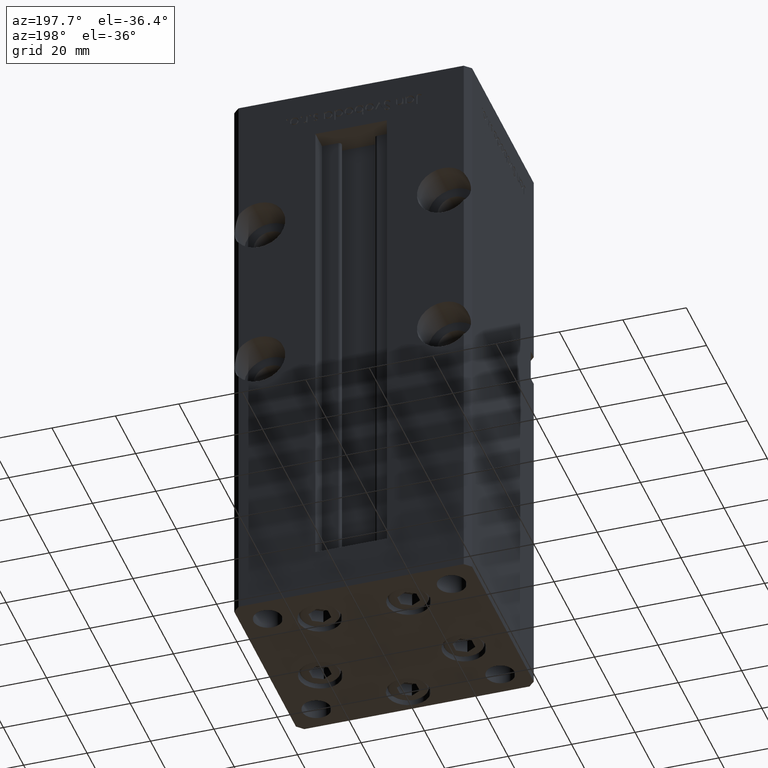
[diagram: clean part render]
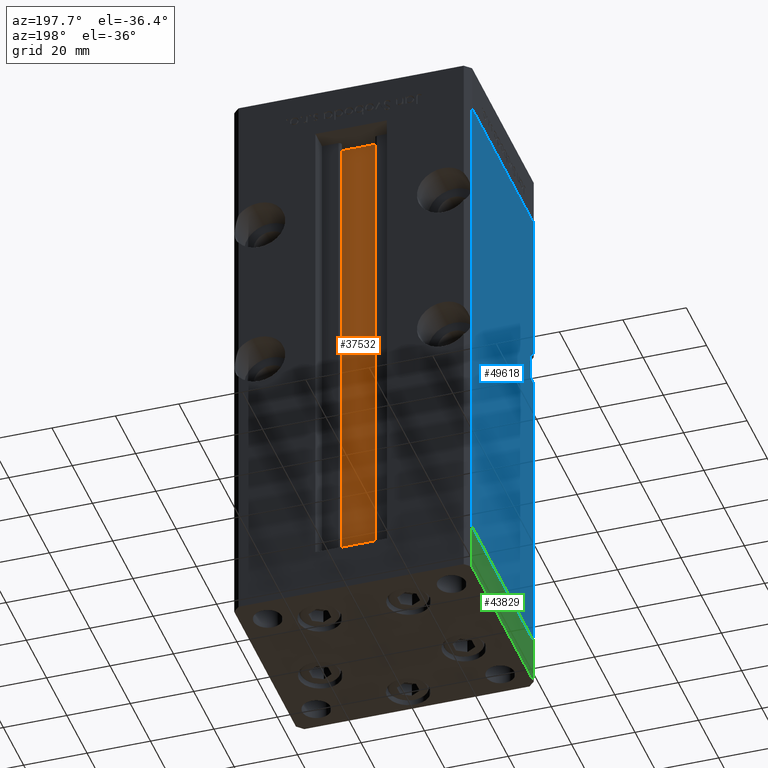
[diagram: same view with three faces highlighted in distinct colors, each labeled with its STEP entity id]
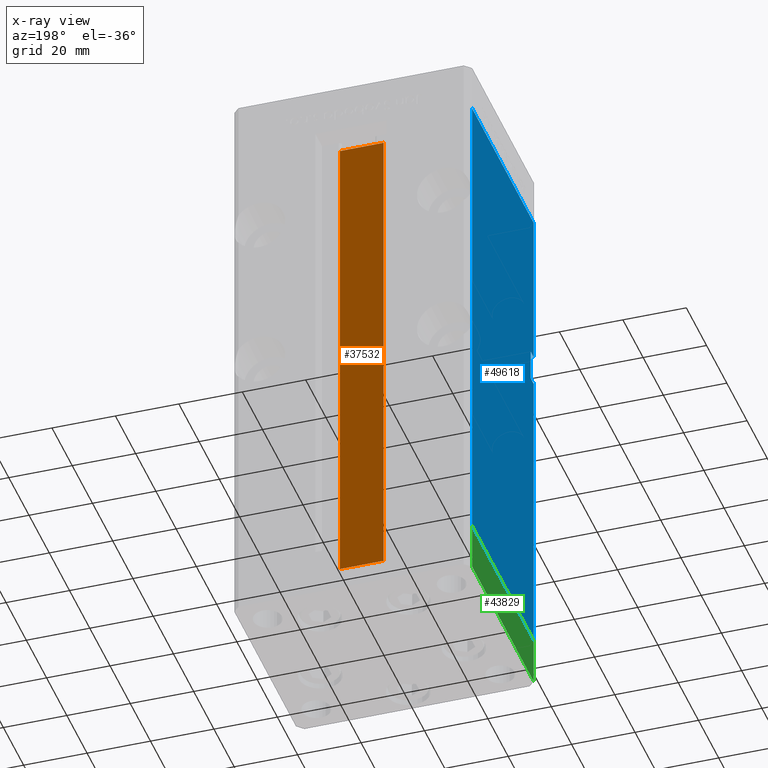
[diagram: x-ray of the same camera — body ghosted, the three highlighted faces saturated]
A machine part, auxiliary view with three faces highlighted in distinct colors.
The next image is the same camera in x-ray (body ghosted, the three faces saturated) — at least one of them is partly hidden behind the body in this view.
Their STEP definitions:

[orange] entity #37532 — the highlighted planar face has unit normal (0, -1, 0).
#2168 = EDGE_CURVE ( 'NONE', #29336, #41878, #46151, .T. ) ;
#7206 = VECTOR ( 'NONE', #26958, 1000.000000000000000 ) ;
#8552 = CARTESIAN_POINT ( 'NONE',  ( 6.876153656360448174, 21.99999999999987210, 0.000000000000000000 ) ) ;
#9499 = LINE ( 'NONE', #41048, #32235 ) ;
#9934 = ORIENTED_EDGE ( 'NONE', *, *, #34786, .T. ) ;
#11996 = VERTEX_POINT ( 'NONE', #18541 ) ;
#12588 = CARTESIAN_POINT ( 'NONE',  ( 6.876153656360448174, 21.99999999999987210, 0.000000000000000000 ) ) ;
#16891 = LINE ( 'NONE', #33302, #53102 ) ;
#18062 = CARTESIAN_POINT ( 'NONE',  ( 6.876153656360448174, 21.99999999999987210, 0.000000000000000000 ) ) ;
#18541 = CARTESIAN_POINT ( 'NONE',  ( -6.876153656360448174, 21.99999999999987210, 156.0000000000000000 ) ) ;
#18732 = CARTESIAN_POINT ( 'NONE',  ( -6.876153656360448174, 21.99999999999987210, 0.000000000000000000 ) ) ;
#19116 = FACE_OUTER_BOUND ( 'NONE', #39641, .T. ) ;
#26958 = DIRECTION ( 'NONE',  ( -0.000000000000000000, -0.000000000000000000, 1.000000000000000000 ) ) ;
#27483 = LINE ( 'NONE', #43854, #7206 ) ;
#29182 = ORIENTED_EDGE ( 'NONE', *, *, #38861, .F. ) ;
#29270 = DIRECTION ( 'NONE',  ( -1.000000000000000000, 0.000000000000000000, 0.000000000000000000 ) ) ;
#29336 = VERTEX_POINT ( 'NONE', #12588 ) ;
#32235 = VECTOR ( 'NONE', #34226, 1000.000000000000000 ) ;
#33302 = CARTESIAN_POINT ( 'NONE',  ( 0.000000000000000000, 21.99999999999987210, 156.0000000000000000 ) ) ;
#34226 = DIRECTION ( 'NONE',  ( 1.000000000000000000, -0.000000000000000000, -0.000000000000000000 ) ) ;
#34786 = EDGE_CURVE ( 'NONE', #36905, #11996, #27483, .T. ) ;
#36905 = VERTEX_POINT ( 'NONE', #18732 ) ;
#37532 = ADVANCED_FACE ( 'NONE', ( #19116 ), #50861, .F. ) ;
#38203 = AXIS2_PLACEMENT_3D ( 'NONE', #18062, #39018, #51131 ) ;
#38861 = EDGE_CURVE ( 'NONE', #36905, #29336, #9499, .T. ) ;
#39018 = DIRECTION ( 'NONE',  ( 0.000000000000000000, -1.000000000000000000, -0.000000000000000000 ) ) ;
#39641 = EDGE_LOOP ( 'NONE', ( #50108, #29182, #9934, #42727 ) ) ;
#41048 = CARTESIAN_POINT ( 'NONE',  ( 6.876153656360448174, 21.99999999999987210, 0.000000000000000000 ) ) ;
#41868 = DIRECTION ( 'NONE',  ( -0.000000000000000000, -0.000000000000000000, 1.000000000000000000 ) ) ;
#41878 = VERTEX_POINT ( 'NONE', #52632 ) ;
#42727 = ORIENTED_EDGE ( 'NONE', *, *, #52408, .F. ) ;
#43854 = CARTESIAN_POINT ( 'NONE',  ( -6.876153656360448174, 21.99999999999987210, 0.000000000000000000 ) ) ;
#46151 = LINE ( 'NONE', #8552, #48300 ) ;
#48300 = VECTOR ( 'NONE', #41868, 1000.000000000000000 ) ;
#50108 = ORIENTED_EDGE ( 'NONE', *, *, #2168, .F. ) ;
#50861 = PLANE ( 'NONE',  #38203 ) ;
#51131 = DIRECTION ( 'NONE',  ( 0.000000000000000000, 0.000000000000000000, -1.000000000000000000 ) ) ;
#52408 = EDGE_CURVE ( 'NONE', #41878, #11996, #16891, .T. ) ;
#52632 = CARTESIAN_POINT ( 'NONE',  ( 6.876153656360448174, 21.99999999999987210, 156.0000000000000000 ) ) ;
#53102 = VECTOR ( 'NONE', #29270, 1000.000000000000000 ) ;

[blue] entity #49618 — the highlighted planar face has unit normal (1, 0, 0).
#492 = ORIENTED_EDGE ( 'NONE', *, *, #12000, .T. ) ;
#593 = VECTOR ( 'NONE', #13974, 1000.000000000000000 ) ;
#1626 = EDGE_CURVE ( 'NONE', #38513, #31471, #3617, .T. ) ;
#1875 = ORIENTED_EDGE ( 'NONE', *, *, #8985, .F. ) ;
#2368 = CARTESIAN_POINT ( 'NONE',  ( -37.49999999999999289, -30.50000000000000000, 0.000000000000000000 ) ) ;
#2971 = DIRECTION ( 'NONE',  ( -0.000000000000000000, -1.000000000000000000, -0.000000000000000000 ) ) ;
#3244 = LINE ( 'NONE', #40329, #27921 ) ;
#3617 = LINE ( 'NONE', #36957, #19117 ) ;
#3883 = VECTOR ( 'NONE', #16915, 1000.000000000000000 ) ;
#4571 = ORIENTED_EDGE ( 'NONE', *, *, #1626, .F. ) ;
#4676 = VECTOR ( 'NONE', #21406, 1000.000000000000000 ) ;
#5078 = ORIENTED_EDGE ( 'NONE', *, *, #10393, .F. ) ;
#5629 = LINE ( 'NONE', #22568, #593 ) ;
#6458 = CARTESIAN_POINT ( 'NONE',  ( -37.50000000000001421, 30.50000000000001066, 156.0000000000000000 ) ) ;
#8251 = LINE ( 'NONE', #24670, #4676 ) ;
#8985 = EDGE_CURVE ( 'NONE', #27245, #38513, #3244, .T. ) ;
#10393 = EDGE_CURVE ( 'NONE', #17550, #27245, #16208, .T. ) ;
#10477 = CARTESIAN_POINT ( 'NONE',  ( -37.50000000000001421, 30.50000000000001066, 156.0000000000000000 ) ) ;
#12000 = EDGE_CURVE ( 'NONE', #51009, #49083, #18802, .T. ) ;
#13310 = EDGE_CURVE ( 'NONE', #49624, #35885, #16378, .T. ) ;
#13974 = DIRECTION ( 'NONE',  ( -0.000000000000000000, -1.000000000000000000, -0.000000000000000000 ) ) ;
#15428 = DIRECTION ( 'NONE',  ( 3.412570772413390973E-16, -1.000000000000000000, 0.000000000000000000 ) ) ;
#16208 = LINE ( 'NONE', #16737, #42533 ) ;
#16378 = LINE ( 'NONE', #49451, #3883 ) ;
#16737 = CARTESIAN_POINT ( 'NONE',  ( -37.49999999999999289, -27.50000000000000000, 106.0000000000000000 ) ) ;
#16915 = DIRECTION ( 'NONE',  ( -0.000000000000000000, -0.000000000000000000, -1.000000000000000000 ) ) ;
#17539 = EDGE_CURVE ( 'NONE', #17550, #35885, #5629, .T. ) ;
#17550 = VERTEX_POINT ( 'NONE', #39230 ) ;
#17902 = CARTESIAN_POINT ( 'NONE',  ( -37.49999999999999289, -30.50000000000000000, 106.0000000000000000 ) ) ;
#18380 = ORIENTED_EDGE ( 'NONE', *, *, #19071, .T. ) ;
#18802 = LINE ( 'NONE', #10477, #36478 ) ;
#19071 = EDGE_CURVE ( 'NONE', #49083, #31471, #40412, .T. ) ;
#19083 = FACE_OUTER_BOUND ( 'NONE', #29425, .T. ) ;
#19117 = VECTOR ( 'NONE', #40724, 1000.000000000000000 ) ;
#21406 = DIRECTION ( 'NONE',  ( 3.412570772413390973E-16, -1.000000000000000000, 0.000000000000000000 ) ) ;
#22568 = CARTESIAN_POINT ( 'NONE',  ( -37.49999999999999289, -27.50000000000000000, 106.0000000000000000 ) ) ;
#22871 = DIRECTION ( 'NONE',  ( 1.000000000000000000, 3.412570772413390480E-16, -0.000000000000000000 ) ) ;
#23501 = CARTESIAN_POINT ( 'NONE',  ( -37.50000000000001421, 30.50000000000001066, 0.000000000000000000 ) ) ;
#23928 = CARTESIAN_POINT ( 'NONE',  ( -37.49999999999999289, -30.50000000000000000, 156.0000000000000000 ) ) ;
#24670 = CARTESIAN_POINT ( 'NONE',  ( -37.50000000000001421, 30.50000000000001066, 156.0000000000000000 ) ) ;
#27245 = VERTEX_POINT ( 'NONE', #46683 ) ;
#27921 = VECTOR ( 'NONE', #2971, 1000.000000000000000 ) ;
#29425 = EDGE_LOOP ( 'NONE', ( #4571, #1875, #5078, #42110, #45074, #36414, #492, #18380 ) ) ;
#29804 = VECTOR ( 'NONE', #15428, 1000.000000000000000 ) ;
#30471 = CARTESIAN_POINT ( 'NONE',  ( -37.50000000000001421, 30.50000000000001066, 0.000000000000000000 ) ) ;
#30714 = CARTESIAN_POINT ( 'NONE',  ( -37.50000000000001421, 30.50000000000001066, 156.0000000000000000 ) ) ;
#31471 = VERTEX_POINT ( 'NONE', #2368 ) ;
#31733 = DIRECTION ( 'NONE',  ( -3.412570772413390480E-16, 1.000000000000000000, 0.000000000000000000 ) ) ;
#35222 = PLANE ( 'NONE',  #42726 ) ;
#35466 = CARTESIAN_POINT ( 'NONE',  ( -37.49999999999999289, -30.50000000000000000, 96.00000000000000000 ) ) ;
#35766 = EDGE_CURVE ( 'NONE', #51009, #49624, #8251, .T. ) ;
#35885 = VERTEX_POINT ( 'NONE', #17902 ) ;
#36414 = ORIENTED_EDGE ( 'NONE', *, *, #35766, .F. ) ;
#36478 = VECTOR ( 'NONE', #51347, 1000.000000000000000 ) ;
#36957 = CARTESIAN_POINT ( 'NONE',  ( -37.49999999999999289, -30.50000000000000000, 156.0000000000000000 ) ) ;
#38513 = VERTEX_POINT ( 'NONE', #35466 ) ;
#39230 = CARTESIAN_POINT ( 'NONE',  ( -37.49999999999999289, -27.50000000000000000, 106.0000000000000000 ) ) ;
#40329 = CARTESIAN_POINT ( 'NONE',  ( -37.49999999999999289, -27.50000000000000000, 96.00000000000000000 ) ) ;
#40412 = LINE ( 'NONE', #23501, #29804 ) ;
#40724 = DIRECTION ( 'NONE',  ( -0.000000000000000000, -0.000000000000000000, -1.000000000000000000 ) ) ;
#42110 = ORIENTED_EDGE ( 'NONE', *, *, #17539, .T. ) ;
#42533 = VECTOR ( 'NONE', #49547, 1000.000000000000000 ) ;
#42726 = AXIS2_PLACEMENT_3D ( 'NONE', #6458, #22871, #31733 ) ;
#45074 = ORIENTED_EDGE ( 'NONE', *, *, #13310, .F. ) ;
#46683 = CARTESIAN_POINT ( 'NONE',  ( -37.49999999999999289, -27.50000000000000000, 96.00000000000000000 ) ) ;
#49083 = VERTEX_POINT ( 'NONE', #30471 ) ;
#49451 = CARTESIAN_POINT ( 'NONE',  ( -37.49999999999999289, -30.50000000000000000, 156.0000000000000000 ) ) ;
#49547 = DIRECTION ( 'NONE',  ( 0.000000000000000000, 0.000000000000000000, -1.000000000000000000 ) ) ;
#49618 = ADVANCED_FACE ( 'NONE', ( #19083 ), #35222, .F. ) ;
#49624 = VERTEX_POINT ( 'NONE', #23928 ) ;
#51009 = VERTEX_POINT ( 'NONE', #30714 ) ;
#51347 = DIRECTION ( 'NONE',  ( -0.000000000000000000, -0.000000000000000000, -1.000000000000000000 ) ) ;

[green] entity #43829 — the highlighted planar face has unit normal (-1, -0, 0).
#869 = VERTEX_POINT ( 'NONE', #26906 ) ;
#1550 = ORIENTED_EDGE ( 'NONE', *, *, #15148, .T. ) ;
#1841 = CARTESIAN_POINT ( 'NONE',  ( 37.50000000000001421, -30.50000000000000711, -15.00000000000000000 ) ) ;
#2393 = DIRECTION ( 'NONE',  ( 0.000000000000000000, 0.000000000000000000, 1.000000000000000000 ) ) ;
#2644 = DIRECTION ( 'NONE',  ( -1.478780668045802821E-15, 1.000000000000000000, 0.000000000000000000 ) ) ;
#3144 = VERTEX_POINT ( 'NONE', #24975 ) ;
#5541 = ORIENTED_EDGE ( 'NONE', *, *, #17750, .F. ) ;
#5719 = CARTESIAN_POINT ( 'NONE',  ( 37.50000000000001421, -30.50000000000000711, 0.000000000000000000 ) ) ;
#6027 = LINE ( 'NONE', #38565, #10883 ) ;
#8762 = CARTESIAN_POINT ( 'NONE',  ( 37.50000000000001421, -30.50000000000000711, -15.00000000000000000 ) ) ;
#10883 = VECTOR ( 'NONE', #50932, 1000.000000000000000 ) ;
#11611 = VERTEX_POINT ( 'NONE', #40623 ) ;
#12403 = VERTEX_POINT ( 'NONE', #5719 ) ;
#12456 = ORIENTED_EDGE ( 'NONE', *, *, #37039, .F. ) ;
#15148 = EDGE_CURVE ( 'NONE', #11611, #3144, #42971, .T. ) ;
#17329 = LINE ( 'NONE', #34265, #22718 ) ;
#17750 = EDGE_CURVE ( 'NONE', #12403, #869, #6027, .T. ) ;
#19307 = CARTESIAN_POINT ( 'NONE',  ( 37.49999999999992184, 30.50000000000001066, -15.00000000000000000 ) ) ;
#22718 = VECTOR ( 'NONE', #29196, 1000.000000000000000 ) ;
#24975 = CARTESIAN_POINT ( 'NONE',  ( 37.49999999999992184, 30.50000000000001066, -15.00000000000000000 ) ) ;
#26906 = CARTESIAN_POINT ( 'NONE',  ( 37.49999999999992184, 30.50000000000001066, 0.000000000000000000 ) ) ;
#26986 = EDGE_CURVE ( 'NONE', #3144, #869, #27134, .T. ) ;
#27134 = LINE ( 'NONE', #19307, #47421 ) ;
#29196 = DIRECTION ( 'NONE',  ( 0.000000000000000000, 0.000000000000000000, 1.000000000000000000 ) ) ;
#30050 = ORIENTED_EDGE ( 'NONE', *, *, #26986, .T. ) ;
#34265 = CARTESIAN_POINT ( 'NONE',  ( 37.50000000000001421, -30.50000000000000711, -15.00000000000000000 ) ) ;
#37039 = EDGE_CURVE ( 'NONE', #11611, #12403, #17329, .T. ) ;
#38565 = CARTESIAN_POINT ( 'NONE',  ( 37.50000000000001421, -30.50000000000000711, 0.000000000000000000 ) ) ;
#40623 = CARTESIAN_POINT ( 'NONE',  ( 37.50000000000001421, -30.50000000000000711, -15.00000000000000000 ) ) ;
#42971 = LINE ( 'NONE', #1841, #47712 ) ;
#43829 = ADVANCED_FACE ( 'NONE', ( #45576 ), #50683, .T. ) ;
#45576 = FACE_OUTER_BOUND ( 'NONE', #48347, .T. ) ;
#47421 = VECTOR ( 'NONE', #2393, 1000.000000000000000 ) ;
#47712 = VECTOR ( 'NONE', #2644, 1000.000000000000000 ) ;
#48347 = EDGE_LOOP ( 'NONE', ( #5541, #12456, #1550, #30050 ) ) ;
#49888 = DIRECTION ( 'NONE',  ( 1.000000000000000000, 1.478780668045803018E-15, -0.000000000000000000 ) ) ;
#50151 = DIRECTION ( 'NONE',  ( -1.478780668045803018E-15, 1.000000000000000000, 0.000000000000000000 ) ) ;
#50256 = AXIS2_PLACEMENT_3D ( 'NONE', #8762, #49888, #50151 ) ;
#50683 = PLANE ( 'NONE',  #50256 ) ;
#50932 = DIRECTION ( 'NONE',  ( -1.478780668045802821E-15, 1.000000000000000000, 0.000000000000000000 ) ) ;